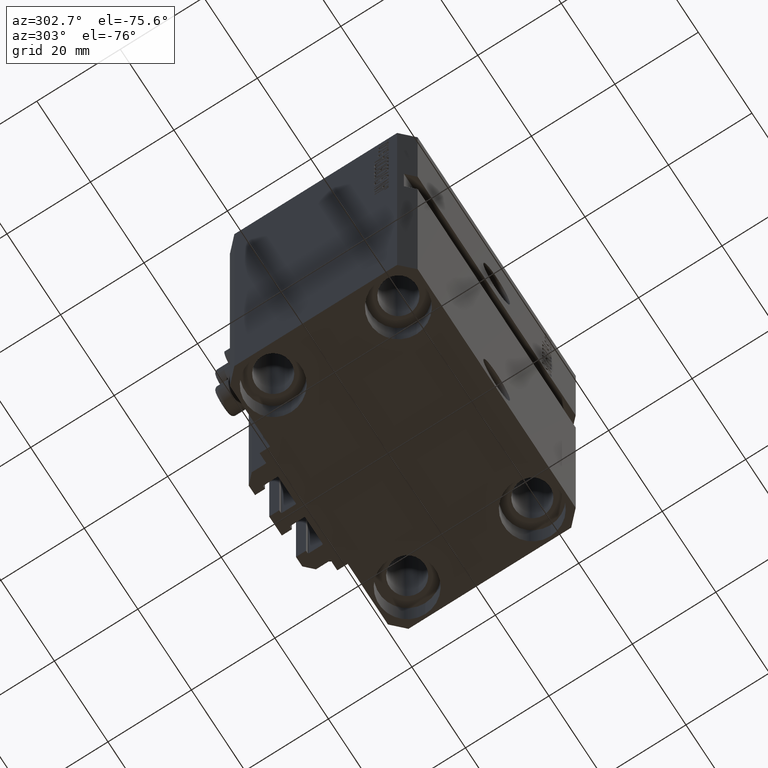
[diagram: clean part render]
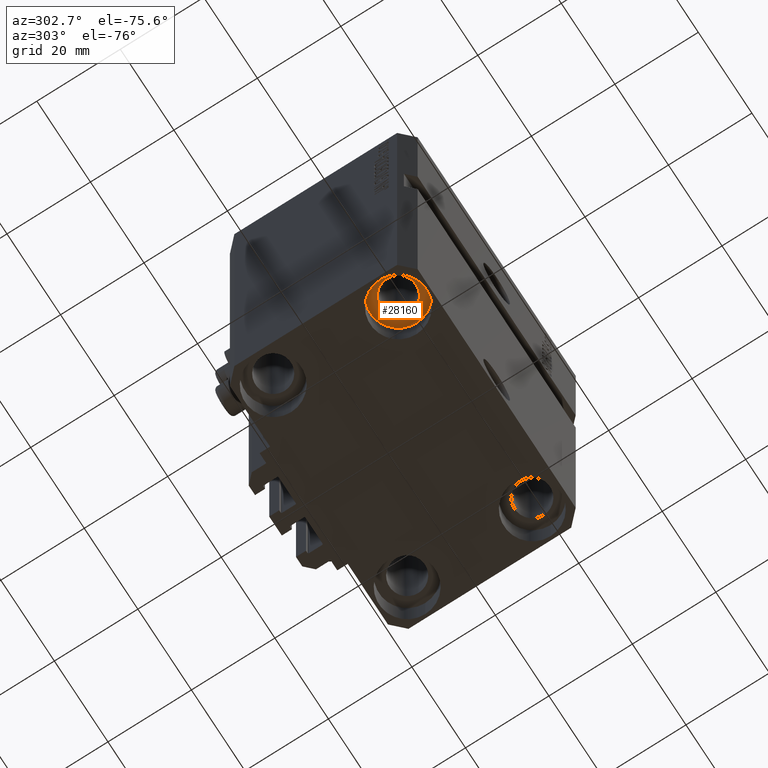
[diagram: same view with one face highlighted and labeled with its STEP entity id]
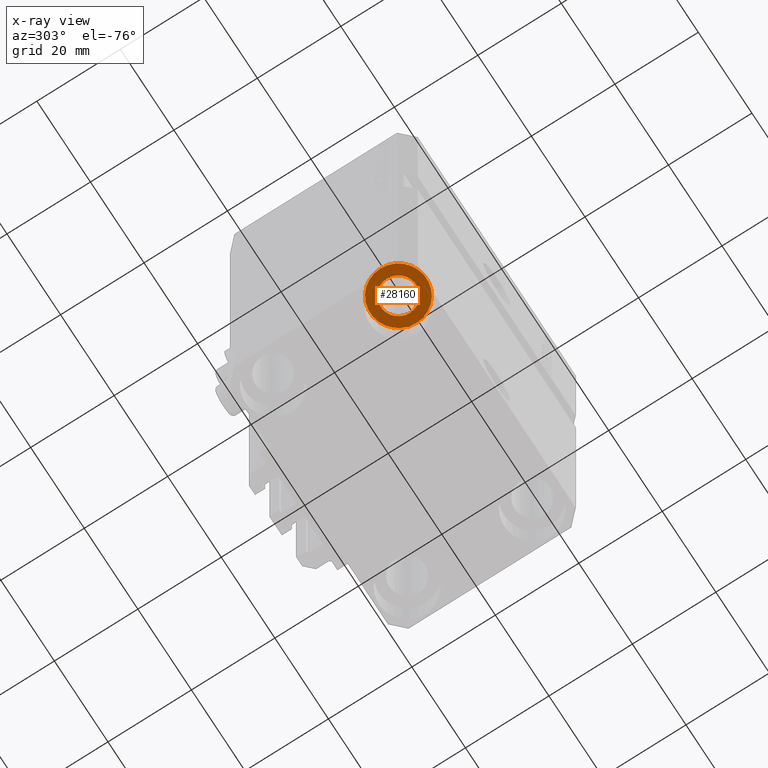
[diagram: x-ray of the same camera — body ghosted, the highlighted face saturated]
A machine part, auxiliary view. The second image highlights one B-rep face of the part: STEP entity #28160.
The next image is the same camera in x-ray: the body ghosted, the highlighted face saturated — about 0% of this face is hidden behind the body in this view.
In plain terms, the highlighted planar face has unit normal (0, 0, -1).
Its self-contained STEP definition (entity closure, byte-faithful):
#567 = CARTESIAN_POINT ( 'NONE',  ( -31.75000000004154899, -15.00000000000000000, -98.00000000000000000 ) ) ;
#1327 = CARTESIAN_POINT ( 'NONE',  ( -25.00000000000000355, -15.00000000000000000, -98.00000000000000000 ) ) ;
#1387 = FACE_BOUND ( 'NONE', #11230, .T. ) ;
#1528 = EDGE_CURVE ( 'NONE', #6617, #21077, #23526, .T. ) ;
#2494 = EDGE_CURVE ( 'NONE', #41139, #24441, #41045, .T. ) ;
#2905 = AXIS2_PLACEMENT_3D ( 'NONE', #1327, #44041, #15903 ) ;
#3303 = CARTESIAN_POINT ( 'NONE',  ( -18.24999999995845812, -15.00000000000000000, -98.00000000000000000 ) ) ;
#6617 = VERTEX_POINT ( 'NONE', #34287 ) ;
#6784 = EDGE_CURVE ( 'NONE', #24441, #41139, #41954, .T. ) ;
#8348 = DIRECTION ( 'NONE',  ( 0.000000000000000000, 0.000000000000000000, -1.000000000000000000 ) ) ;
#8990 = DIRECTION ( 'NONE',  ( 1.000000000000000000, 0.000000000000000000, 0.000000000000000000 ) ) ;
#9052 = CARTESIAN_POINT ( 'NONE',  ( -25.00000000000000355, -15.00000000000000000, -98.00000000000000000 ) ) ;
#11230 = EDGE_LOOP ( 'NONE', ( #16184, #13321 ) ) ;
#13321 = ORIENTED_EDGE ( 'NONE', *, *, #15816, .F. ) ;
#14248 = ORIENTED_EDGE ( 'NONE', *, *, #2494, .F. ) ;
#15816 = EDGE_CURVE ( 'NONE', #21077, #6617, #20050, .T. ) ;
#15903 = DIRECTION ( 'NONE',  ( -1.000000000000000000, 0.000000000000000000, 0.000000000000000000 ) ) ;
#15959 = CARTESIAN_POINT ( 'NONE',  ( -25.00000000000000355, -15.00000000000000000, -98.00000000000000000 ) ) ;
#16184 = ORIENTED_EDGE ( 'NONE', *, *, #1528, .F. ) ;
#16809 = AXIS2_PLACEMENT_3D ( 'NONE', #20688, #46196, #8990 ) ;
#17335 = AXIS2_PLACEMENT_3D ( 'NONE', #15959, #41006, #45297 ) ;
#18046 = CARTESIAN_POINT ( 'NONE',  ( -25.00000000000000355, -15.00000000000000000, -98.00000000000000000 ) ) ;
#20050 = CIRCLE ( 'NONE', #23861, 4.250000000041540105 ) ;
#20057 = DIRECTION ( 'NONE',  ( -1.000000000000000000, 0.000000000000000000, 0.000000000000000000 ) ) ;
#20688 = CARTESIAN_POINT ( 'NONE',  ( -25.00000000000000355, -15.00000000000000000, -98.00000000000000000 ) ) ;
#21077 = VERTEX_POINT ( 'NONE', #35922 ) ;
#22376 = ORIENTED_EDGE ( 'NONE', *, *, #6784, .F. ) ;
#23526 = CIRCLE ( 'NONE', #2905, 4.250000000041540105 ) ;
#23861 = AXIS2_PLACEMENT_3D ( 'NONE', #9052, #8348, #20057 ) ;
#24441 = VERTEX_POINT ( 'NONE', #3303 ) ;
#26468 = PLANE ( 'NONE',  #17335 ) ;
#27337 = AXIS2_PLACEMENT_3D ( 'NONE', #18046, #39523, #38822 ) ;
#28160 = ADVANCED_FACE ( 'NONE', ( #1387, #33380 ), #26468, .T. ) ;
#30902 = EDGE_LOOP ( 'NONE', ( #14248, #22376 ) ) ;
#33380 = FACE_OUTER_BOUND ( 'NONE', #30902, .T. ) ;
#34287 = CARTESIAN_POINT ( 'NONE',  ( -20.74999999995846522, -15.00000000000000000, -98.00000000000000000 ) ) ;
#35922 = CARTESIAN_POINT ( 'NONE',  ( -29.25000000004154543, -15.00000000000000000, -98.00000000000000000 ) ) ;
#38822 = DIRECTION ( 'NONE',  ( 1.000000000000000000, 0.000000000000000000, 0.000000000000000000 ) ) ;
#39523 = DIRECTION ( 'NONE',  ( -0.000000000000000000, -0.000000000000000000, 1.000000000000000000 ) ) ;
#41006 = DIRECTION ( 'NONE',  ( 0.000000000000000000, 0.000000000000000000, -1.000000000000000000 ) ) ;
#41045 = CIRCLE ( 'NONE', #27337, 6.750000000041541881 ) ;
#41139 = VERTEX_POINT ( 'NONE', #567 ) ;
#41954 = CIRCLE ( 'NONE', #16809, 6.750000000041541881 ) ;
#44041 = DIRECTION ( 'NONE',  ( 0.000000000000000000, 0.000000000000000000, -1.000000000000000000 ) ) ;
#45297 = DIRECTION ( 'NONE',  ( 1.000000000000000000, 0.000000000000000000, 0.000000000000000000 ) ) ;
#46196 = DIRECTION ( 'NONE',  ( -0.000000000000000000, -0.000000000000000000, 1.000000000000000000 ) ) ;